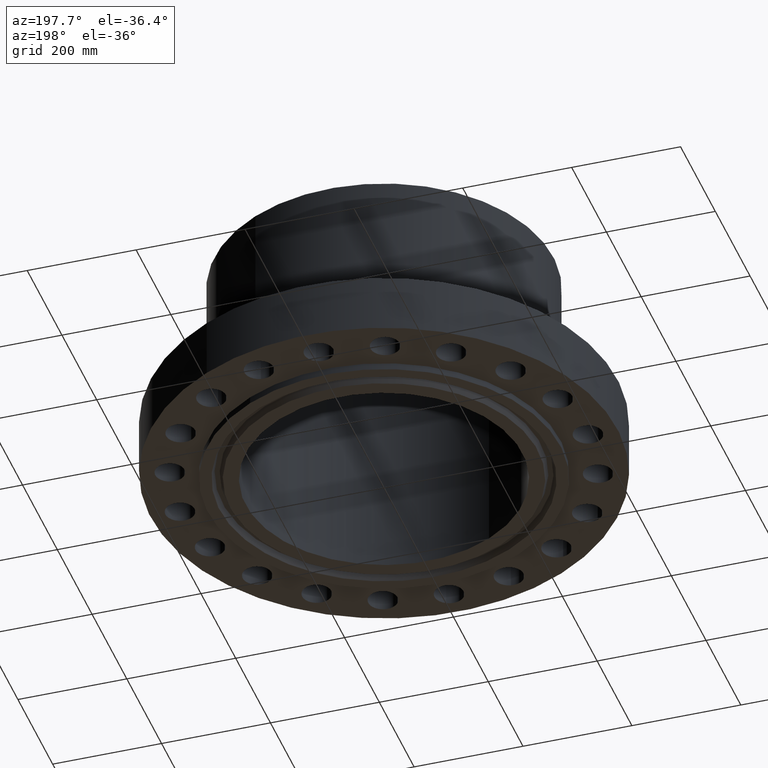
[diagram: clean part render]
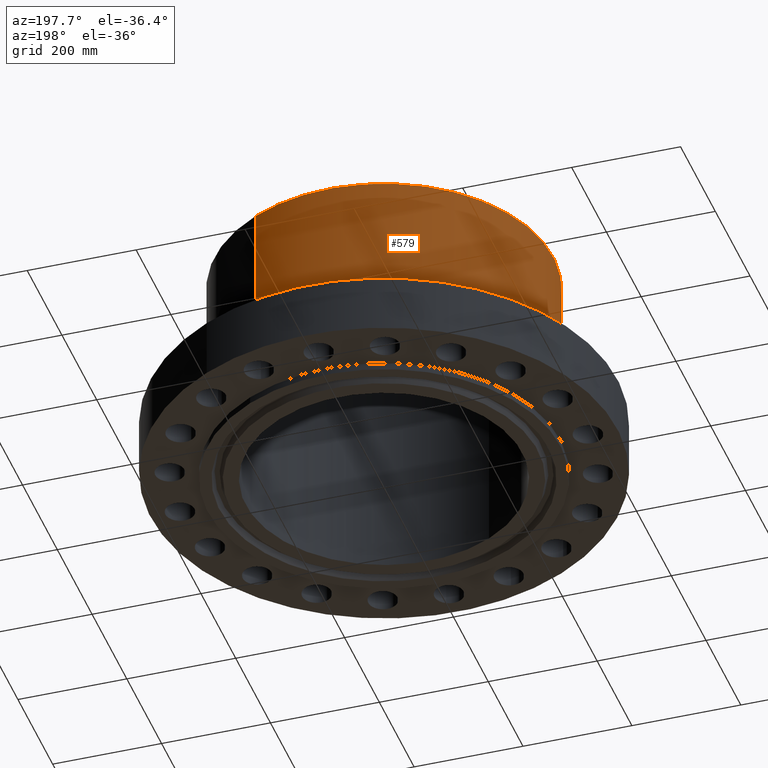
[diagram: same view with one face highlighted and labeled with its STEP entity id]
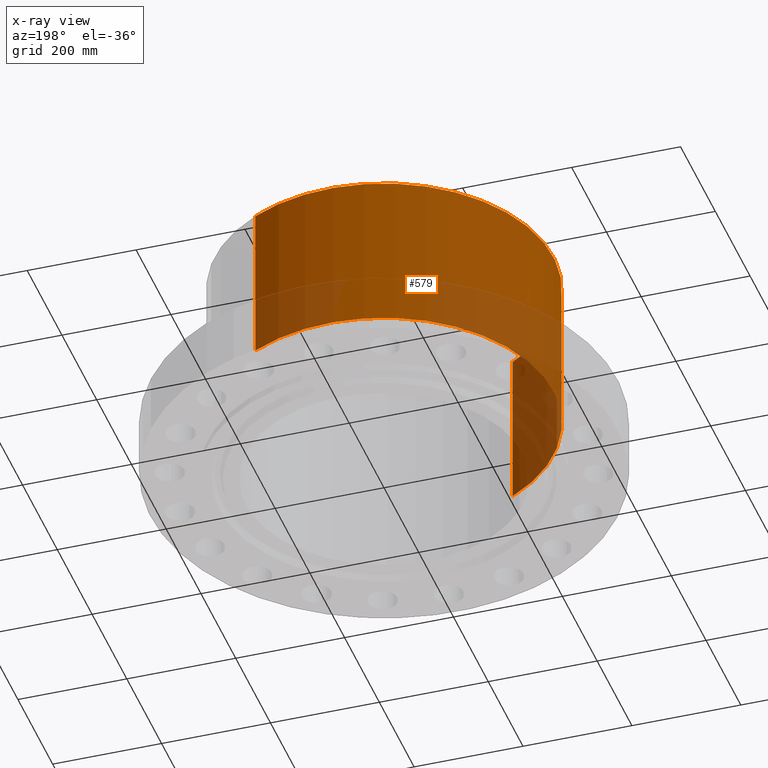
[diagram: x-ray of the same camera — body ghosted, the highlighted face saturated]
A machine part, auxiliary view. The second image highlights one B-rep face of the part: STEP entity #579.
The next image is the same camera in x-ray: the body ghosted, the highlighted face saturated — about 33% of this face is hidden behind the body in this view.
In plain terms, the highlighted cylindrical surface (partial cylindrical patch) has radius 311.15 mm, axis along (0, 0, -1).
Its self-contained STEP definition (entity closure, byte-faithful):
#526=AXIS2_PLACEMENT_3D('Cylinder Axis2P3D',#523,#524,#525) ;
#565=AXIS2_PLACEMENT_3D('Circle Axis2P3D',#563,#564,$) ;
#570=AXIS2_PLACEMENT_3D('Circle Axis2P3D',#568,#569,$) ;
#523=CARTESIAN_POINT('Axis2P3D Location',(0.,0.,7.62500000003)) ;
#532=CARTESIAN_POINT('Vertex',(5.87296284792,10.7503863832,4.25000000002)) ;
#534=CARTESIAN_POINT('Vertex',(-5.87296284792,-10.7503863832,4.25000000002)) ;
#537=CARTESIAN_POINT('Line Origine',(5.87296284792,10.7503863832,10.)) ;
#541=CARTESIAN_POINT('Vertex',(5.87296284792,10.7503863832,15.7500000001)) ;
#548=CARTESIAN_POINT('Vertex',(-5.87296284792,-10.7503863832,15.7500000001)) ;
#551=CARTESIAN_POINT('Line Origine',(-5.87296284792,-10.7503863832,10.)) ;
#563=CARTESIAN_POINT('Axis2P3D Location',(0.,0.,4.25000000002)) ;
#568=CARTESIAN_POINT('Axis2P3D Location',(0.,0.,15.7500000001)) ;
#524=DIRECTION('Axis2P3D Direction',(0.,0.,-0.0393700787402)) ;
#525=DIRECTION('Axis2P3D XDirection',(-0.0188750212049,-0.0345504945626,0.)) ;
#538=DIRECTION('Vector Direction',(0.,0.,-0.0393700787402)) ;
#552=DIRECTION('Vector Direction',(0.,0.,-0.0393700787402)) ;
#564=DIRECTION('Axis2P3D Direction',(0.,0.,-0.0393700787402)) ;
#569=DIRECTION('Axis2P3D Direction',(0.,0.,-0.0393700787402)) ;
#539=VECTOR('Line Direction',#538,0.0393700787402) ;
#553=VECTOR('Line Direction',#552,0.0393700787402) ;
#574=ORIENTED_EDGE('',*,*,#567,.F.) ;
#575=ORIENTED_EDGE('',*,*,#555,.T.) ;
#576=ORIENTED_EDGE('',*,*,#572,.T.) ;
#577=ORIENTED_EDGE('',*,*,#543,.F.) ;
#579=ADVANCED_FACE('PartBody',(#578),#527,.T.) ;
#566=CIRCLE('generated circle',#565,12.25) ;
#571=CIRCLE('generated circle',#570,12.25) ;
#527=CYLINDRICAL_SURFACE('generated cylinder',#526,12.25) ;
#543=EDGE_CURVE('',#533,#542,#540,.F.) ;
#555=EDGE_CURVE('',#535,#549,#554,.F.) ;
#567=EDGE_CURVE('',#535,#533,#566,.T.) ;
#572=EDGE_CURVE('',#549,#542,#571,.T.) ;
#573=EDGE_LOOP('',(#574,#575,#576,#577)) ;
#578=FACE_OUTER_BOUND('',#573,.T.) ;
#540=LINE('Line',#537,#539) ;
#554=LINE('Line',#551,#553) ;
#533=VERTEX_POINT('',#532) ;
#535=VERTEX_POINT('',#534) ;
#542=VERTEX_POINT('',#541) ;
#549=VERTEX_POINT('',#548) ;